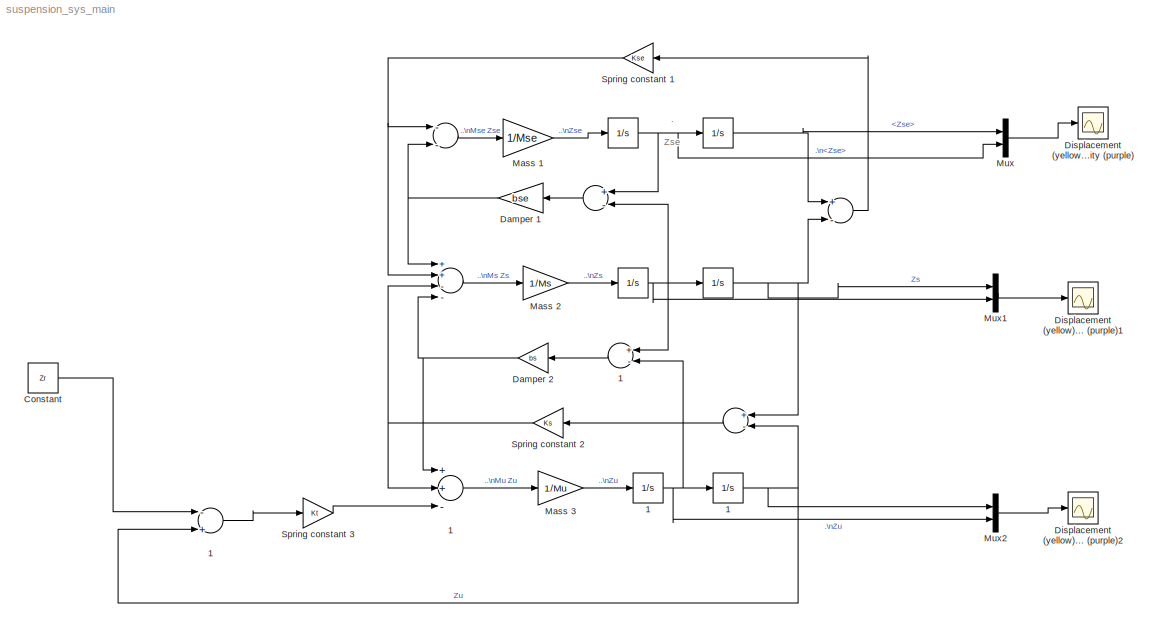
MODEL suspension_sys_main
KIND model
BLOCK [Integrator]  
  Ports = [1, 1]
BLOCK [Sum]   
  CollapseMode = All dimensions
  InputSameDT = off
  Inputs = +-
  OutDataType = sfix(16)
  OutDataTypeMode = Inherit via internal rule
  OutScaling = 2^-10
  Ports = [2, 1]
  SaturateOnIntegerOverflow = off
BLOCK [Integrator]      
  Ports = [1, 1]
BLOCK [Sum]       
  CollapseMode = All dimensions
  InputSameDT = off
  Inputs = ++--
  OutDataType = sfix(16)
  OutDataTypeMode = Inherit via internal rule
  OutScaling = 2^-10
  Ports = [4, 1]
  SaturateOnIntegerOverflow = off
BLOCK [Sum]        
  CollapseMode = All dimensions
  InputSameDT = off
  Inputs = --
  OutDataType = sfix(16)
  OutDataTypeMode = Inherit via internal rule
  OutScaling = 2^-10
  Ports = [2, 1]
  SaturateOnIntegerOverflow = off
BLOCK [Sum]         
  CollapseMode = All dimensions
  InputSameDT = off
  Inputs = +-
  OutDataType = sfix(16)
  OutDataTypeMode = Inherit via internal rule
  OutScaling = 2^-10
  Ports = [2, 1]
  SaturateOnIntegerOverflow = off
BLOCK [Integrator]          
  Ports = [1, 1]
BLOCK [Integrator]           
  Ports = [1, 1]
BLOCK [Sum]              
  CollapseMode = All dimensions
  InputSameDT = off
  Inputs = +-
  OutDataType = sfix(16)
  OutDataTypeMode = Inherit via internal rule
  OutScaling = 2^-10
  Ports = [2, 1]
  SaturateOnIntegerOverflow = off
BLOCK [Sum]              1
  CollapseMode = All dimensions
  InputSameDT = off
  Inputs = +-
  OutDataType = sfix(16)
  OutDataTypeMode = Inherit via internal rule
  OutScaling = 2^-10
  Ports = [2, 1]
  SaturateOnIntegerOverflow = off
BLOCK [Integrator]           1
  Ports = [1, 1]
BLOCK [Integrator]          1
  Ports = [1, 1]
BLOCK [Sum]        1
  CollapseMode = All dimensions
  InputSameDT = off
  Inputs = -+
  OutDataType = sfix(16)
  OutDataTypeMode = Inherit via internal rule
  OutScaling = 2^-10
  Ports = [2, 1]
  SaturateOnIntegerOverflow = off
BLOCK [Sum]       1
  CollapseMode = All dimensions
  InputSameDT = off
  Inputs = ++-
  OutDataType = sfix(16)
  OutDataTypeMode = Inherit via internal rule
  OutScaling = 2^-10
  Ports = [3, 1]
  SaturateOnIntegerOverflow = off
BLOCK [Constant] Constant
  OutDataType = sfix(16)
  OutScaling = 2^0
  Value = Zr
BLOCK [Gain] Damper 1
  Gain = bse
  OutDataType = sfix(16)
  OutDataTypeMode = Inherit via internal rule
  OutScaling = 2^0
  ParameterDataType = sfix(16)
  ParameterDataTypeMode = Inherit via internal rule
  ParameterScaling = 2^0
  SaturateOnIntegerOverflow = off
BLOCK [Gain] Damper 2
  Gain = bs
  OutDataType = sfix(16)
  OutDataTypeMode = Inherit via internal rule
  OutScaling = 2^0
  ParameterDataType = sfix(16)
  ParameterDataTypeMode = Inherit via internal rule
  ParameterScaling = 2^0
  SaturateOnIntegerOverflow = off
BLOCK [Scope] Displacement (yellow)\nVelocity (purple)
  DataFormat = StructureWithTime
  Floating = off
  NumInputPorts = 1
  Ports = [1]
  SampleTime = 0
  SaveName = ScopeData1
  TimeRange = 10
  YMax = 1.5
  YMin = -1
BLOCK [Scope] Displacement (yellow)\nVelocity (purple)1
  DataFormat = StructureWithTime
  Floating = off
  NumInputPorts = 1
  Ports = [1]
  SampleTime = 0
  TimeRange = 10
  YMax = 1.5
  YMin = -1
BLOCK [Scope] Displacement (yellow)\nVelocity (purple)2
  DataFormat = StructureWithTime
  Floating = off
  NumInputPorts = 1
  Ports = [1]
  SampleTime = 0
  SaveName = ScopeData2
  TimeRange = 10
  YMax = 7
  YMin = -2
BLOCK [Gain] Mass 1
  Gain = 1/Mse
  OutDataType = sfix(16)
  OutDataTypeMode = Inherit via internal rule
  OutScaling = 2^0
  ParameterDataType = sfix(16)
  ParameterDataTypeMode = Inherit via internal rule
  ParameterScaling = 2^0
  SaturateOnIntegerOverflow = off
BLOCK [Gain] Mass 2
  Gain = 1/Ms
  OutDataType = sfix(16)
  OutDataTypeMode = Inherit via internal rule
  OutScaling = 2^0
  ParameterDataType = sfix(16)
  ParameterDataTypeMode = Inherit via internal rule
  ParameterScaling = 2^0
  SaturateOnIntegerOverflow = off
BLOCK [Gain] Mass 3
  Gain = 1/Mu
  OutDataType = sfix(16)
  OutDataTypeMode = Inherit via internal rule
  OutScaling = 2^0
  ParameterDataType = sfix(16)
  ParameterDataTypeMode = Inherit via internal rule
  ParameterScaling = 2^0
  SaturateOnIntegerOverflow = off
BLOCK [Mux] Mux
  DisplayOption = bar
  Inputs = 2
  Ports = [2, 1]
BLOCK [Mux] Mux1
  DisplayOption = bar
  Inputs = 2
  Ports = [2, 1]
BLOCK [Mux] Mux2
  DisplayOption = bar
  Inputs = 2
  Ports = [2, 1]
BLOCK [Gain] Spring constant 1
  Gain = Kse
  OutDataType = sfix(16)
  OutDataTypeMode = Inherit via internal rule
  OutScaling = 2^0
  ParameterDataType = sfix(16)
  ParameterDataTypeMode = Inherit via internal rule
  ParameterScaling = 2^0
  SaturateOnIntegerOverflow = off
BLOCK [Gain] Spring constant 2
  Gain = Ks
  OutDataType = sfix(16)
  OutDataTypeMode = Inherit via internal rule
  OutScaling = 2^0
  ParameterDataType = sfix(16)
  ParameterDataTypeMode = Inherit via internal rule
  ParameterScaling = 2^0
  SaturateOnIntegerOverflow = off
BLOCK [Gain] Spring constant 3
  Gain = Kt
  OutDataType = sfix(16)
  OutDataTypeMode = Inherit via internal rule
  OutScaling = 2^0
  ParameterDataType = sfix(16)
  ParameterDataTypeMode = Inherit via internal rule
  ParameterScaling = 2^0
  SaturateOnIntegerOverflow = off
ANNOTATION (root): .\nZse
LINE              1:1 -> Damper 2:1
LINE              :1 -> Spring constant 2:1
NET           1:1 ->              :2,        1:2, Mux2:1
NET           :1 ->              :1,   :2, Mux1:1
NET          1:1 ->              1:2,           1:1, Mux2:2
NET          :1 ->              1:1,           :1,         :2, Mux1:2
LINE         :1 -> Damper 1:1
LINE        1:1 -> Spring constant 3:1
LINE        :1 -> Mass 1:1
LINE       1:1 -> Mass 3:1
LINE       :1 -> Mass 2:1
NET      :1 ->   :1, Mux:1
LINE   :1 -> Spring constant 1:1
NET  :1 ->         :1,      :1, Mux:2
LINE Constant:1 ->        1:1
NET Damper 1:1 ->        :2,       :1
NET Damper 2:1 ->       1:1,       :4
LINE Mass 1:1 ->  :1
LINE Mass 2:1 ->          :1
LINE Mass 3:1 ->          1:1
LINE Mux1:1 -> Displacement (yellow)\nVelocity (purple)1:1
LINE Mux2:1 -> Displacement (yellow)\nVelocity (purple)2:1
LINE Mux:1 -> Displacement (yellow)\nVelocity (purple):1
NET Spring constant 1:1 ->        :1,       :2
NET Spring constant 2:1 ->       1:2,       :3
LINE Spring constant 3:1 ->       1:3
note: NET lines group one-source signal fan-out (src -> all destinations, sorted); 1:1 wires keep LINE
